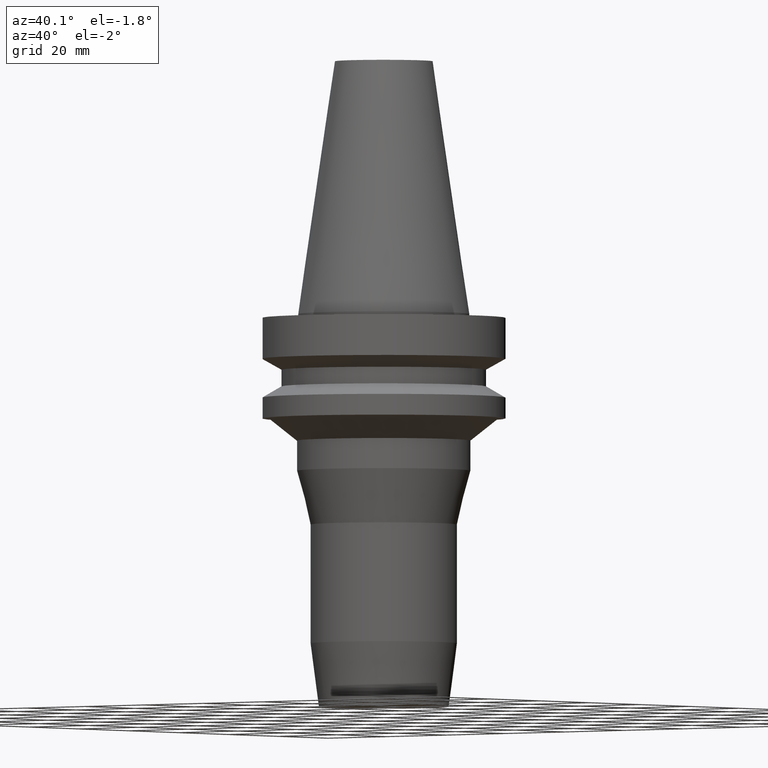
[diagram: clean part render]
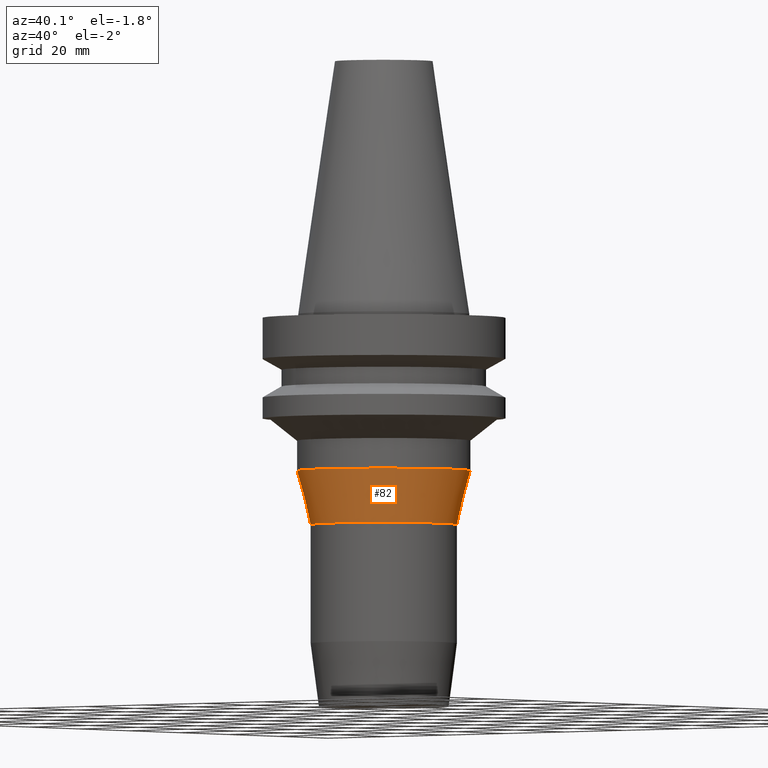
[diagram: same view with one face highlighted and labeled with its STEP entity id]
A machine part, auxiliary view. The second image highlights one B-rep face of the part: STEP entity #82.
In plain terms, the highlighted conical surface has half-angle 14.113 deg.
Its self-contained STEP definition (entity closure, byte-faithful):
#82=ADVANCED_FACE('Unnamed[1]',(#193,#194),#195,.T.);
#104=EDGE_CURVE('Unnamed[1]',#227,#227,#228,.T.);
#135=EDGE_CURVE('Unnamed[1]',#276,#276,#277,.T.);
#193=FACE_BOUND('',#336,.T.);
#194=FACE_BOUND('',#337,.T.);
#195=CONICAL_SURFACE('',#338,20.7500000000019,0.246318137964247);
#227=VERTEX_POINT('',#378);
#228=CIRCLE('',#379,19.0000000000052);
#276=VERTEX_POINT('',#439);
#277=CIRCLE('',#440,22.4999999999985);
#336=EDGE_LOOP('',(#487));
#337=EDGE_LOOP('',(#488));
#338=AXIS2_PLACEMENT_3D('',#489,#490,#491);
#378=CARTESIAN_POINT('',(3.3363421698747E-015,19.0000000000053,-54.4866025403829));
#379=AXIS2_PLACEMENT_3D('',#523,#524,#525);
#439=CARTESIAN_POINT('',(2.48394354653096E-015,22.4999999999986,-40.565876598222));
#440=AXIS2_PLACEMENT_3D('',#579,#580,#581);
#487=ORIENTED_EDGE('',*,*,#104,.F.);
#488=ORIENTED_EDGE('',*,*,#135,.T.);
#489=CARTESIAN_POINT('',(2.91014285820283E-015,9.11202857164057E-014,-47.5262395693025));
#490=DIRECTION('',(-6.12323399573677E-017,-1.22464679914766E-016,1.0));
#491=DIRECTION('',(-1.23259516440772E-032,1.0,1.22464679914766E-016));
#523=CARTESIAN_POINT('',(3.3363421698747E-015,9.19726843397494E-014,-54.4866025403829));
#524=DIRECTION('',(6.12323399573677E-017,1.22464679914716E-016,-1.0));
#525=DIRECTION('',(-1.23259516440796E-032,1.0,1.22464679914716E-016));
#579=CARTESIAN_POINT('',(2.48394354653096E-015,9.02678870930619E-014,-40.565876598222));
#580=DIRECTION('',(6.12323399573677E-017,1.22464679914737E-016,-1.0));
#581=DIRECTION('',(-1.23259516440791E-032,1.0,1.22464679914737E-016));